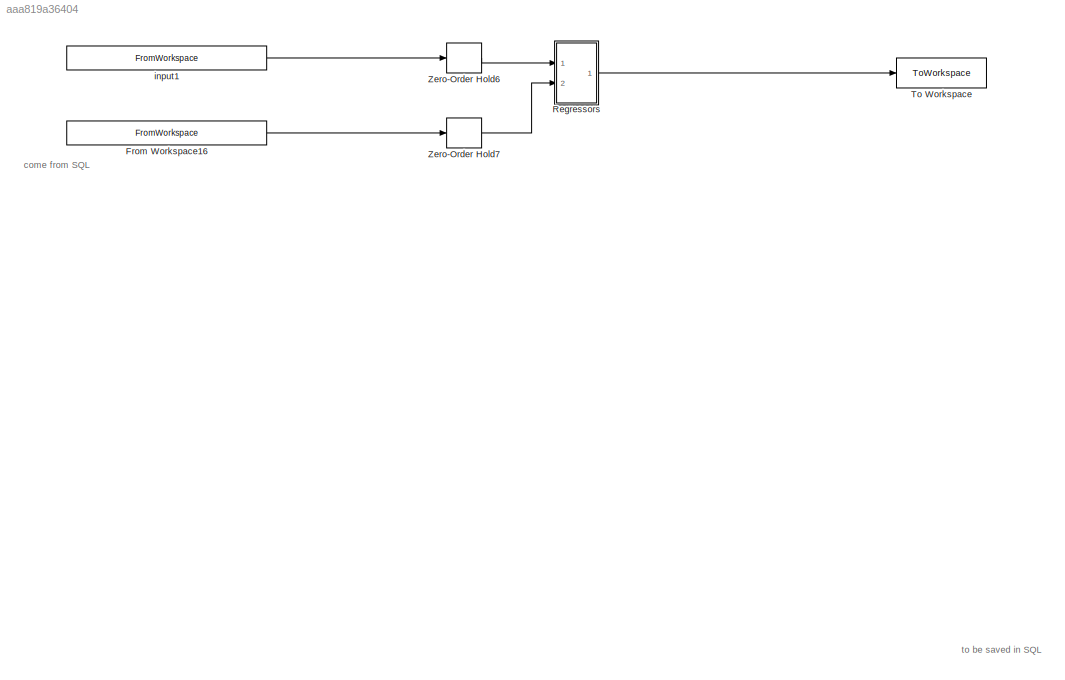
MODEL slx_aaa819a36404
KIND model
CONFIG AbsTol = auto
CONFIG EnableMultiTasking = on
CONFIG FixedStep = auto
CONFIG MaxStep = 0.1
CONFIG MinStep = 0.01
CONFIG RelTol = 1e-2
CONFIG SampleTimeConstraint = Unconstrained
CONFIG SolverName = VariableStepAuto
CONFIG StartTime = 0.0
CONFIG StopTime = 10
WORKSPACE source: mxarray member
WORKSPACE Ts = 0.001
BLOCK [FromWorkspace] From Workspace16
  SampleTime = -1
  VariableName = [input(:,1), input(:,3)]
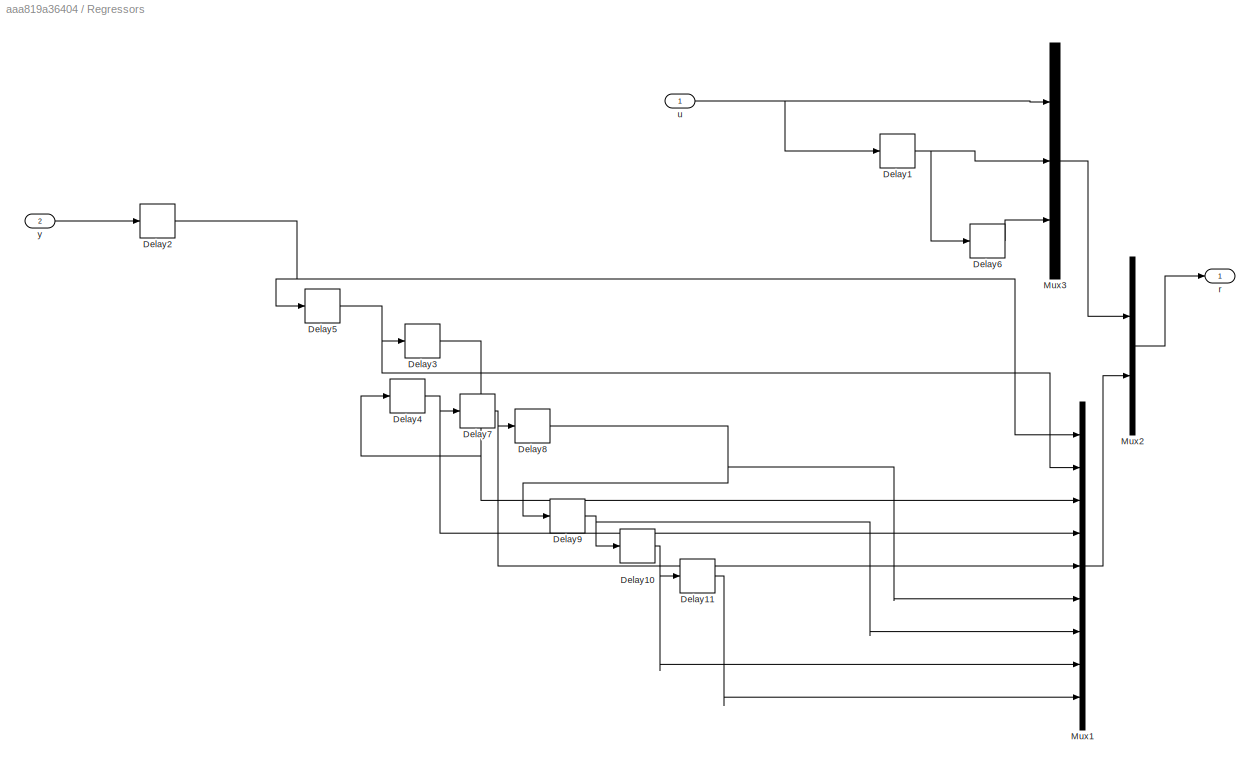
BLOCK [SubSystem] Regressors
  Ports = [2, 1]
  RequestExecContextInheritance = off
BLOCK [Delay] Regressors/Delay1
  DelayLength = 1
  InitialCondition = 1
  InputPortMap = u0
  Ports = [1, 1]
  SampleTime = Ts
BLOCK [Delay] Regressors/Delay10
  DelayLength = 1
  InitialCondition = 2
  InputPortMap = u0
  Ports = [1, 1]
  SampleTime = Ts
BLOCK [Delay] Regressors/Delay11
  DelayLength = 1
  InitialCondition = 2
  InputPortMap = u0
  Ports = [1, 1]
  SampleTime = Ts
BLOCK [Delay] Regressors/Delay2
  DelayLength = 1
  InitialCondition = 2
  InputPortMap = u0
  Ports = [1, 1]
  SampleTime = Ts
BLOCK [Delay] Regressors/Delay3
  DelayLength = 1
  InitialCondition = 2
  InputPortMap = u0
  Ports = [1, 1]
  SampleTime = Ts
BLOCK [Delay] Regressors/Delay4
  DelayLength = 1
  InitialCondition = 2
  InputPortMap = u0
  Ports = [1, 1]
  SampleTime = Ts
BLOCK [Delay] Regressors/Delay5
  DelayLength = 1
  InitialCondition = 2
  InputPortMap = u0
  Ports = [1, 1]
  SampleTime = Ts
BLOCK [Delay] Regressors/Delay6
  DelayLength = 1
  InitialCondition = 1
  InputPortMap = u0
  Ports = [1, 1]
  SampleTime = Ts
BLOCK [Delay] Regressors/Delay7
  DelayLength = 1
  InitialCondition = 2
  InputPortMap = u0
  Ports = [1, 1]
  SampleTime = Ts
BLOCK [Delay] Regressors/Delay8
  DelayLength = 1
  InitialCondition = 2
  InputPortMap = u0
  Ports = [1, 1]
  SampleTime = Ts
BLOCK [Delay] Regressors/Delay9
  DelayLength = 1
  InitialCondition = 2
  InputPortMap = u0
  Ports = [1, 1]
  SampleTime = Ts
BLOCK [Mux] Regressors/Mux1
  DisplayOption = bar
  Inputs = 9
  Ports = [9, 1]
BLOCK [Mux] Regressors/Mux2
  DisplayOption = bar
  Inputs = 2
  Ports = [2, 1]
BLOCK [Mux] Regressors/Mux3
  DisplayOption = bar
  Inputs = 3
  Ports = [3, 1]
BLOCK [Outport] Regressors/r
  VectorParamsAs1DForOutWhenUnconnected = off
BLOCK [Inport] Regressors/u
BLOCK [Inport] Regressors/y
  Port = 2
BLOCK [ToWorkspace] To Workspace
  FixptAsFi = on
  MaxDataPoints = inf
  Ports = [1]
  SampleTime = -1
  SaveFormat = Timeseries
  VariableName = simout
BLOCK [ZeroOrderHold] Zero-Order Hold6
  SampleTime = Ts
BLOCK [ZeroOrderHold] Zero-Order Hold7
  SampleTime = Ts
BLOCK [FromWorkspace] input1
  NameLocation = top
  SampleTime = -1
  VariableName = [input(:,1), input(:,2)]
ANNOTATION (root): come from SQL
ANNOTATION (root): to be saved in SQL
LINE From Workspace16:1 -> Zero-Order Hold7:1
NET Regressors/Delay10:1 -> Regressors/Delay11:1, Regressors/Mux1:8
LINE Regressors/Delay11:1 -> Regressors/Mux1:9
NET Regressors/Delay1:1 -> Regressors/Delay6:1, Regressors/Mux3:2
NET Regressors/Delay2:1 -> Regressors/Delay5:1, Regressors/Mux1:1
NET Regressors/Delay3:1 -> Regressors/Delay4:1, Regressors/Mux1:3
NET Regressors/Delay4:1 -> Regressors/Delay7:1, Regressors/Mux1:4
NET Regressors/Delay5:1 -> Regressors/Delay3:1, Regressors/Mux1:2
LINE Regressors/Delay6:1 -> Regressors/Mux3:3
NET Regressors/Delay7:1 -> Regressors/Delay8:1, Regressors/Mux1:5
NET Regressors/Delay8:1 -> Regressors/Delay9:1, Regressors/Mux1:6
NET Regressors/Delay9:1 -> Regressors/Delay10:1, Regressors/Mux1:7
LINE Regressors/Mux1:1 -> Regressors/Mux2:2
LINE Regressors/Mux2:1 -> Regressors/r:1
LINE Regressors/Mux3:1 -> Regressors/Mux2:1
NET Regressors/u:1 -> Regressors/Delay1:1, Regressors/Mux3:1
LINE Regressors/y:1 -> Regressors/Delay2:1
LINE Regressors:1 -> To Workspace:1
LINE Zero-Order Hold6:1 -> Regressors:1
LINE Zero-Order Hold7:1 -> Regressors:2
LINE input1:1 -> Zero-Order Hold6:1
note: NET lines group one-source signal fan-out (src -> all destinations, sorted); 1:1 wires keep LINE
